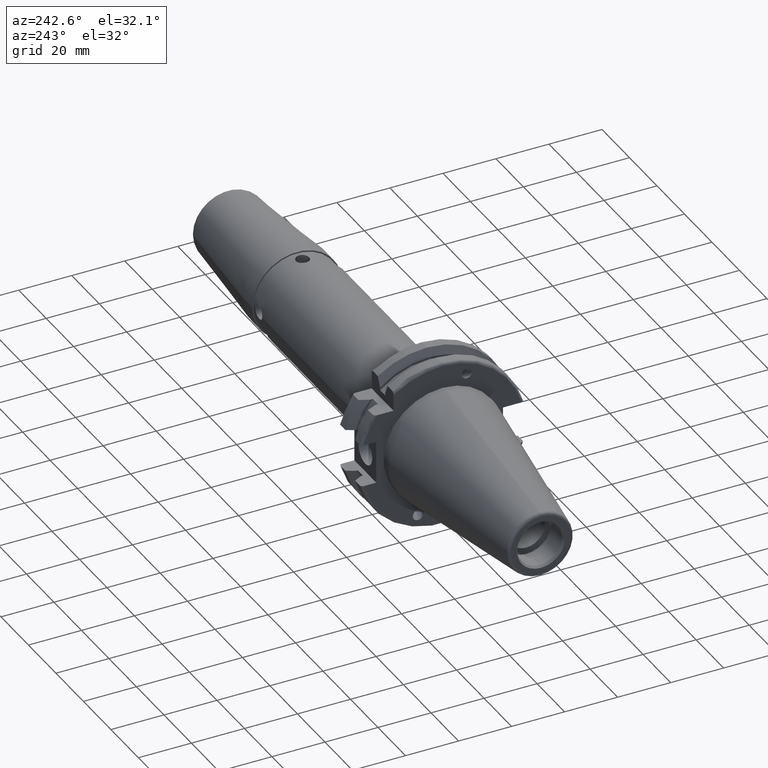
[diagram: clean part render]
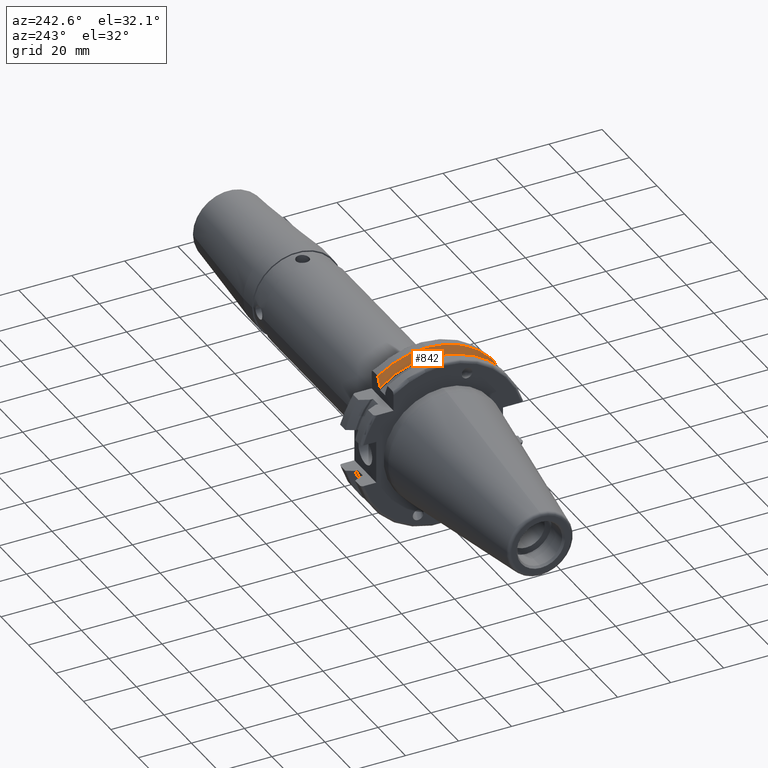
[diagram: same view with one face highlighted and labeled with its STEP entity id]
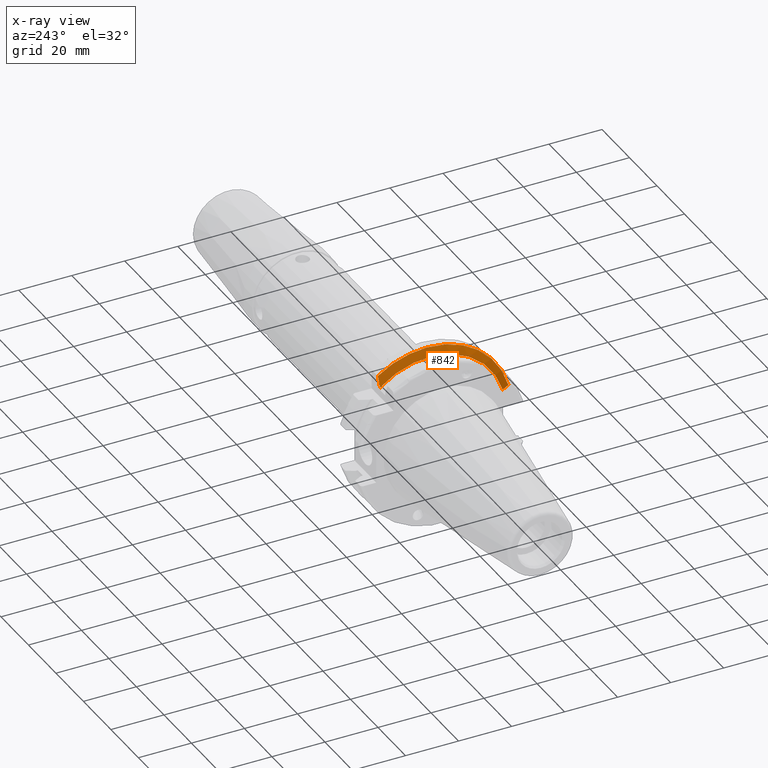
[diagram: x-ray of the same camera — body ghosted, the highlighted face saturated]
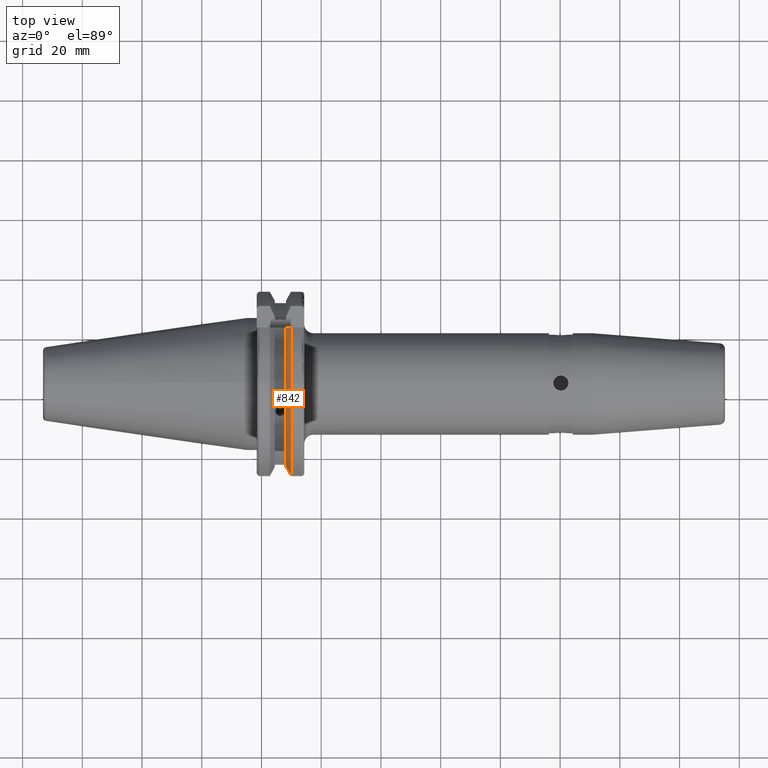
[diagram: same view with one face highlighted and labeled with its STEP entity id]
A machine part, auxiliary view. The second image highlights one B-rep face of the part: STEP entity #842.
The next image is the same camera in x-ray: the body ghosted, the highlighted face saturated — about 0% of this face is hidden behind the body in this view.
A second angle (top view) of the same face is appended — the face is thin or edge-on in the first view.
In plain terms, the highlighted conical surface has half-angle 60 deg.
Its self-contained STEP definition (entity closure, byte-faithful):
#124 = CARTESIAN_POINT ( 'NONE',  ( 14.63627039878647196, -8.049999999999993605, -30.73838195156016440 ) ) ;
#291 = ORIENTED_EDGE ( 'NONE', *, *, #6411, .F. ) ;
#351 = DIRECTION ( 'NONE',  ( -1.000000000000000000, -1.806543779445901364E-16, 0.0000000000000000000 ) ) ;
#370 = CARTESIAN_POINT ( 'NONE',  ( 13.51484071328662395, -23.41672025053472694, 18.49999999999999645 ) ) ;
#402 = CARTESIAN_POINT ( 'NONE',  ( 12.97500000000000497, -8.050000000000006040, -27.75371168065689176 ) ) ;
#513 = CONICAL_SURFACE ( 'NONE', #2061, 31.77499999999999147, 1.047197551196598519 ) ;
#547 = CIRCLE ( 'NONE', #4101, 28.89759526419163649 ) ;
#681 = DIRECTION ( 'NONE',  ( 1.000000000000000000, 1.806543779445901364E-16, 0.0000000000000000000 ) ) ;
#687 = CARTESIAN_POINT ( 'NONE',  ( 14.63627039878647196, -8.049999999999993605, -30.73838195156016440 ) ) ;
#831 = AXIS2_PLACEMENT_3D ( 'NONE', #6545, #6578, #6604 ) ;
#842 = ADVANCED_FACE ( 'NONE', ( #2122 ), #513, .T. ) ;
#891 = B_SPLINE_CURVE_WITH_KNOTS ( 'NONE', 3,
 ( #124, #3402, #1211, #5024 ),
 .UNSPECIFIED., .F., .F.,
 ( 4, 4 ),
 ( 0.01642707667485877182, 0.01984294225823546309 ),
 .UNSPECIFIED. ) ;
#903 = CARTESIAN_POINT ( 'NONE',  ( 12.97500000000000497, -22.19957233941751440, 18.49999999999999645 ) ) ;
#1053 = EDGE_CURVE ( 'NONE', #6307, #5870, #5259, .T. ) ;
#1211 = CARTESIAN_POINT ( 'NONE',  ( 13.52714681845930933, -8.050000000000006040, -28.74947433268970798 ) ) ;
#1329 = CARTESIAN_POINT ( 'NONE',  ( 12.97500000000000320, -8.673617379884035472E-16, -7.489693497978174534E-17 ) ) ;
#1448 = CARTESIAN_POINT ( 'NONE',  ( 14.63627039878645775, -8.673617379884035472E-16, -7.489693497978174534E-17 ) ) ;
#1451 = ORIENTED_EDGE ( 'NONE', *, *, #1053, .T. ) ;
#1869 = DIRECTION ( 'NONE',  ( 1.800900864017274288E-16, -1.000000000000000000, 0.0000000000000000000 ) ) ;
#2061 = AXIS2_PLACEMENT_3D ( 'NONE', #1448, #681, #4946 ) ;
#2122 = FACE_OUTER_BOUND ( 'NONE', #6051, .T. ) ;
#2333 = ORIENTED_EDGE ( 'NONE', *, *, #5412, .T. ) ;
#2509 = VERTEX_POINT ( 'NONE', #687 ) ;
#2763 = EDGE_CURVE ( 'NONE', #2770, #5870, #6438, .T. ) ;
#2770 = VERTEX_POINT ( 'NONE', #5795 ) ;
#3402 = CARTESIAN_POINT ( 'NONE',  ( 14.08105500646738051, -8.050000000000006040, -29.74428971667221333 ) ) ;
#3615 = CARTESIAN_POINT ( 'NONE',  ( 14.63627039878645775, -8.673617379884035472E-16, -7.489693497978174534E-17 ) ) ;
#3639 = CARTESIAN_POINT ( 'NONE',  ( 14.07015206758932635, -24.62806258394688896, 18.49999999999999645 ) ) ;
#4101 = AXIS2_PLACEMENT_3D ( 'NONE', #1329, #5124, #1869 ) ;
#4155 = DIRECTION ( 'NONE',  ( 1.637819174801077095E-16, -1.000000000000000000, 0.0000000000000000000 ) ) ;
#4382 = CIRCLE ( 'NONE', #5147, 31.77499999999999147 ) ;
#4427 = EDGE_CURVE ( 'NONE', #4608, #2770, #547, .T. ) ;
#4608 = VERTEX_POINT ( 'NONE', #402 ) ;
#4710 = CARTESIAN_POINT ( 'NONE',  ( 14.63627039878647906, -25.83409810695935960, 18.49999999999999645 ) ) ;
#4946 = DIRECTION ( 'NONE',  ( -1.637819174801077095E-16, 1.000000000000000000, 0.0000000000000000000 ) ) ;
#5024 = CARTESIAN_POINT ( 'NONE',  ( 12.97500000000000497, -8.050000000000006040, -27.75371168065689176 ) ) ;
#5124 = DIRECTION ( 'NONE',  ( -1.000000000000000000, -1.806543779445901364E-16, 0.0000000000000000000 ) ) ;
#5147 = AXIS2_PLACEMENT_3D ( 'NONE', #3615, #351, #4155 ) ;
#5259 = CIRCLE ( 'NONE', #831, 31.77499999999999147 ) ;
#5412 = EDGE_CURVE ( 'NONE', #2509, #6307, #4382, .T. ) ;
#5795 = CARTESIAN_POINT ( 'NONE',  ( 12.97500000000000497, -22.19957233941751440, 18.49999999999999645 ) ) ;
#5870 = VERTEX_POINT ( 'NONE', #6108 ) ;
#5981 = CARTESIAN_POINT ( 'NONE',  ( 14.63627039878646308, -31.77499999999999147, -7.489693497978174534E-17 ) ) ;
#6051 = EDGE_LOOP ( 'NONE', ( #291, #2333, #1451, #6910, #6360 ) ) ;
#6108 = CARTESIAN_POINT ( 'NONE',  ( 14.63627039878647906, -25.83409810695935960, 18.49999999999999645 ) ) ;
#6307 = VERTEX_POINT ( 'NONE', #5981 ) ;
#6360 = ORIENTED_EDGE ( 'NONE', *, *, #4427, .F. ) ;
#6411 = EDGE_CURVE ( 'NONE', #2509, #4608, #891, .T. ) ;
#6438 = B_SPLINE_CURVE_WITH_KNOTS ( 'NONE', 3,
 ( #903, #370, #3639, #4710 ),
 .UNSPECIFIED., .F., .F.,
 ( 4, 4 ),
 ( 0.01131948253917636725, 0.01531101307379298393 ),
 .UNSPECIFIED. ) ;
#6545 = CARTESIAN_POINT ( 'NONE',  ( 14.63627039878645775, -8.673617379884035472E-16, -7.489693497978174534E-17 ) ) ;
#6578 = DIRECTION ( 'NONE',  ( -1.000000000000000000, -1.806543779445901364E-16, 0.0000000000000000000 ) ) ;
#6604 = DIRECTION ( 'NONE',  ( 1.637819174801077095E-16, -1.000000000000000000, 0.0000000000000000000 ) ) ;
#6910 = ORIENTED_EDGE ( 'NONE', *, *, #2763, .F. ) ;